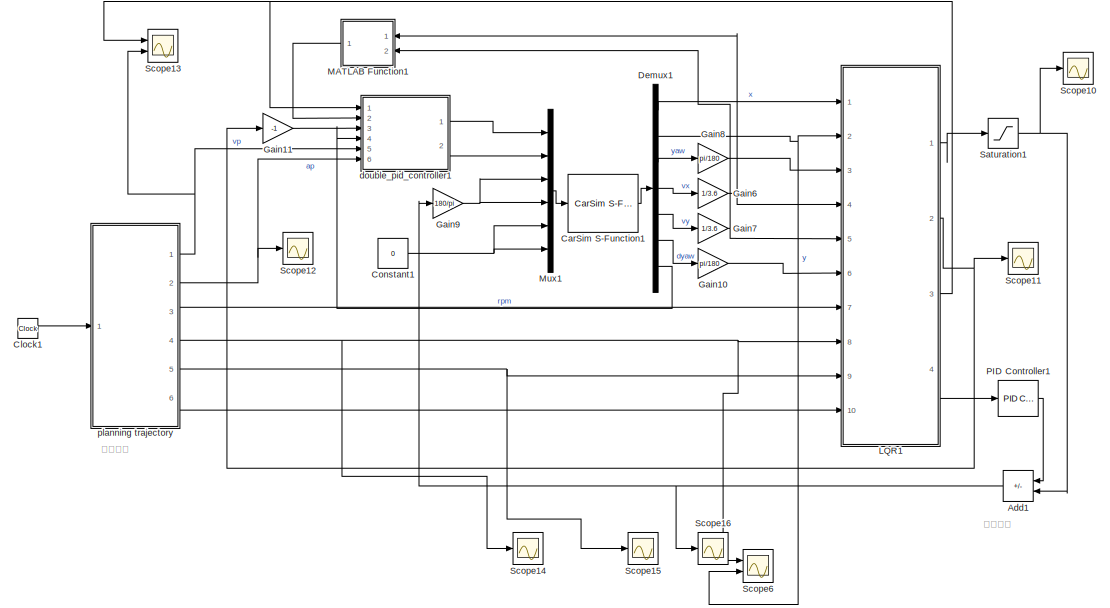
[diagram: root canvas - part 1/2, middle left region]
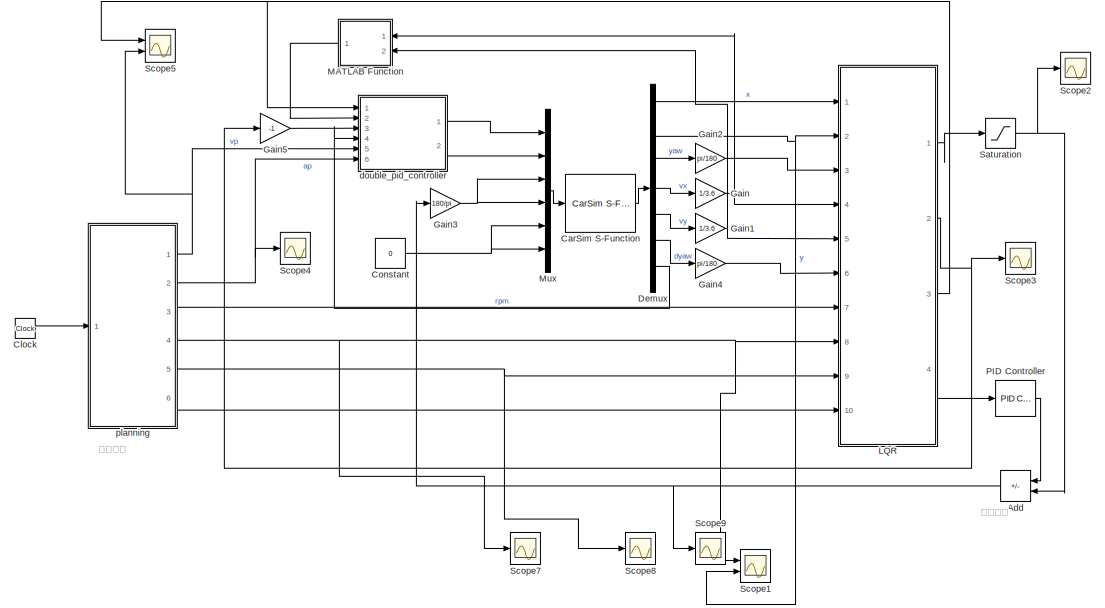
[diagram: root canvas - part 2/2, bottom right region]
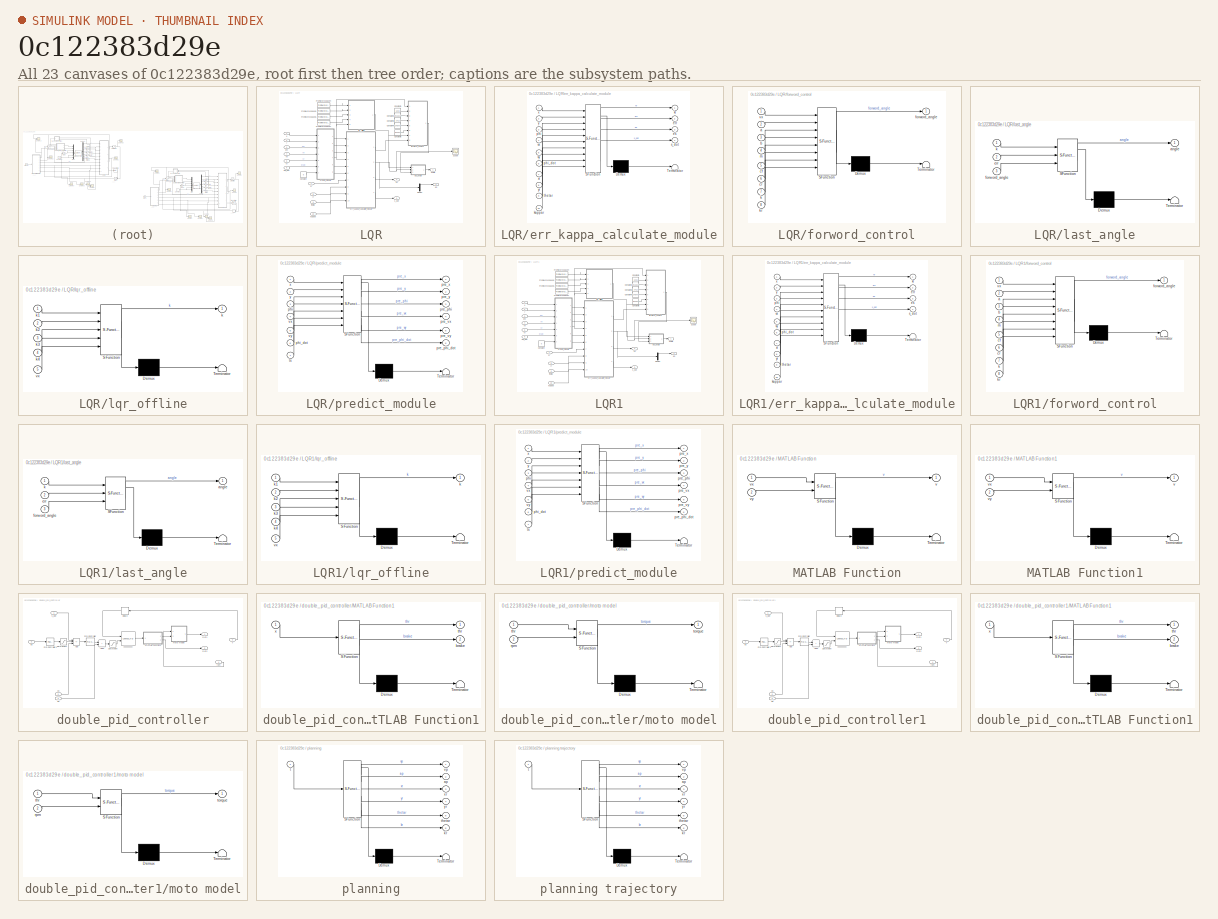
[diagram: thumbnail index - all 23 canvases of the model, root first then tree order]
MODEL slx_0c122383d29e
KIND model
CONFIG AbsTol = auto
CONFIG EnableMultiTasking = off
CONFIG FixedStep = auto
CONFIG MaxStep = auto
CONFIG MinStep = auto
CONFIG RelTol = 1e-3
CONFIG SampleTimeConstraint = Unconstrained
CONFIG Solver = VariableStepAuto
CONFIG SolverName = VariableStepAuto
CONFIG StartTime = 0.0
CONFIG StopTime = 40
BLOCK [Sum] Add
  Commented = on
  IconShape = rectangular
  Inputs = -+
  NameLocation = top
  Ports = [2, 1]
BLOCK [Sum] Add1
  IconShape = rectangular
  Inputs = -+
  NameLocation = top
  Ports = [2, 1]
BLOCK [Reference] CarSim S-Function  REF=Solver_SF/CarSim S-Function
  Commented = on
  Ports = [1, 1]
  Priority = 1
  SourceBlock = Solver_SF/CarSim S-Function
  SourceProductName = CarSim S-Function
  SourceType = Vehicle math model library
BLOCK [Reference] CarSim S-Function1  REF=Solver_SF/CarSim S-Function
  Ports = [1, 1]
  Priority = 1
  SourceBlock = Solver_SF/CarSim S-Function
  SourceProductName = CarSim S-Function
  SourceType = Vehicle math model library
BLOCK [Clock] Clock
  Commented = on
BLOCK [Clock] Clock1
BLOCK [Constant] Constant
  Commented = on
  Value = 0
BLOCK [Constant] Constant1
  Value = 0
BLOCK [Demux] Demux
  Commented = on
  Outputs = 7
  Ports = [1, 7]
BLOCK [Demux] Demux1
  Outputs = 7
  Ports = [1, 7]
BLOCK [Gain] Gain
  Commented = on
  Gain = 1/3.6
BLOCK [Gain] Gain1
  Commented = on
  Gain = 1/3.6
BLOCK [Gain] Gain10
  Gain = pi/180
BLOCK [Gain] Gain11
  Gain = -1
BLOCK [Gain] Gain2
  Commented = on
  Gain = pi/180
BLOCK [Gain] Gain3
  Commented = on
  Gain = 180/pi
BLOCK [Gain] Gain4
  Commented = on
  Gain = pi/180
BLOCK [Gain] Gain5
  Commented = on
  Gain = -1
BLOCK [Gain] Gain6
  Gain = 1/3.6
BLOCK [Gain] Gain7
  Gain = 1/3.6
BLOCK [Gain] Gain8
  Gain = pi/180
BLOCK [Gain] Gain9
  Gain = 180/pi
BLOCK [SubSystem] LQR
  Commented = on
  Ports = [10, 4]
  RequestExecContextInheritance = off
BLOCK [Constant] LQR/Constant
  Value = 0
BLOCK [Constant] LQR/Constant1
  Value = 1.015
BLOCK [Constant] LQR/Constant2
  Value = 2.91-1.015
BLOCK [Constant] LQR/Constant3
  Value = 1412
BLOCK [Constant] LQR/Constant4
  Value = -148970
BLOCK [Constant] LQR/Constant5
  Value = -82204
BLOCK [Demux] LQR/Demux
  Ports = [1, 4]
BLOCK [FromWorkspace] LQR/From Workspace4
  VariableName = k1
BLOCK [FromWorkspace] LQR/From Workspace5
  VariableName = k2
BLOCK [FromWorkspace] LQR/From Workspace6
  VariableName = k3
BLOCK [FromWorkspace] LQR/From Workspace7
  VariableName = k4
BLOCK [Scope] LQR/Scope
  Floating = off
  NumInputPorts = 1
  Ports = [1]
  ScopeSpecificationString = Simulink.scopes.TimeScopeBlockCfg('CurrentConfiguration', extmgr.ConfigurationSet(extmgr.Configuration('Core','General UI',true),extmgr.Configuration('Core','Source UI',true),extmgr.Configuration('Sources','WiredSimulink',true,'DataLoggingVariableName','ScopeData9'),extmgr.Configuration('Visuals','Time Domain',true,'SerializedDisplays',{struct('MinYLimReal','-0.03974','MaxYLimReal','0.03656','YLab...<+1496ch>
BLOCK [Outport] LQR/angle
  VectorParamsAs1DForOutWhenUnconnected = off
BLOCK [Outport] LQR/ed
  Port = 4
  VectorParamsAs1DForOutWhenUnconnected = off
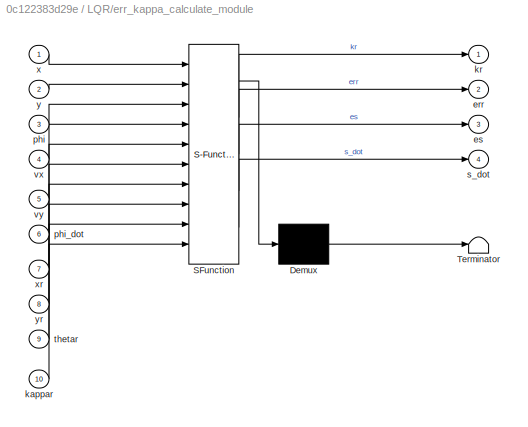
BLOCK [SubSystem] LQR/err_kappa_calculate_module
  ErrorFcn = Stateflow.Translate.translate
  PermitHierarchicalResolution = ExplicitOnly
  Ports = [10, 4]
  RequestExecContextInheritance = off
  SFBlockType = MATLAB Function
  TreatAsAtomicUnit = on
BLOCK [Demux] LQR/err_kappa_calculate_module/ Demux 
  Outputs = 1
  Ports = [1, 1]
BLOCK [S-Function] LQR/err_kappa_calculate_module/ SFunction 
  EnableBusSupport = on
  FunctionName = sf_sfun
  PortCounts = [10 5]
  Ports = [10, 5]
  SFcnIsStateOwnerBlock = off
  SFunctionDeploymentMode = off
  Tag = Stateflow S-Function 5
BLOCK [Terminator] LQR/err_kappa_calculate_module/ Terminator 
BLOCK [Outport] LQR/err_kappa_calculate_module/err
  Port = 2
  VectorParamsAs1DForOutWhenUnconnected = off
BLOCK [Outport] LQR/err_kappa_calculate_module/es
  Port = 3
  VectorParamsAs1DForOutWhenUnconnected = off
BLOCK [Inport] LQR/err_kappa_calculate_module/kappar
  Port = 10
BLOCK [Outport] LQR/err_kappa_calculate_module/kr
  VectorParamsAs1DForOutWhenUnconnected = off
BLOCK [Inport] LQR/err_kappa_calculate_module/phi
  Port = 3
BLOCK [Inport] LQR/err_kappa_calculate_module/phi_dot
  Port = 6
BLOCK [Outport] LQR/err_kappa_calculate_module/s_dot
  Port = 4
  VectorParamsAs1DForOutWhenUnconnected = off
BLOCK [Inport] LQR/err_kappa_calculate_module/thetar
  Port = 9
BLOCK [Inport] LQR/err_kappa_calculate_module/vx
  Port = 4
BLOCK [Inport] LQR/err_kappa_calculate_module/vy
  Port = 5
BLOCK [Inport] LQR/err_kappa_calculate_module/x
BLOCK [Inport] LQR/err_kappa_calculate_module/xr
  Port = 7
BLOCK [Inport] LQR/err_kappa_calculate_module/y
  Port = 2
BLOCK [Inport] LQR/err_kappa_calculate_module/yr
  Port = 8
BLOCK [Outport] LQR/es
  Port = 2
  VectorParamsAs1DForOutWhenUnconnected = off
BLOCK [SubSystem] LQR/forword_control
  ErrorFcn = Stateflow.Translate.translate
  PermitHierarchicalResolution = ExplicitOnly
  Ports = [8, 1]
  RequestExecContextInheritance = off
  SFBlockType = MATLAB Function
  TreatAsAtomicUnit = on
BLOCK [Demux] LQR/forword_control/ Demux 
  Outputs = 1
  Ports = [1, 1]
BLOCK [S-Function] LQR/forword_control/ SFunction 
  EnableBusSupport = on
  FunctionName = sf_sfun
  PortCounts = [8 2]
  Ports = [8, 2]
  SFcnIsStateOwnerBlock = off
  SFunctionDeploymentMode = off
  Tag = Stateflow S-Function 6
BLOCK [Terminator] LQR/forword_control/ Terminator 
BLOCK [Inport] LQR/forword_control/a
  Port = 2
BLOCK [Inport] LQR/forword_control/b
  Port = 3
BLOCK [Inport] LQR/forword_control/cf
  Port = 5
BLOCK [Inport] LQR/forword_control/cr
  Port = 6
BLOCK [Outport] LQR/forword_control/forword_angle
  VectorParamsAs1DForOutWhenUnconnected = off
BLOCK [Inport] LQR/forword_control/k
  Port = 7
BLOCK [Inport] LQR/forword_control/kr
  Port = 8
BLOCK [Inport] LQR/forword_control/m
  Port = 4
BLOCK [Inport] LQR/forword_control/vx
BLOCK [Inport] LQR/kappar
  Port = 10
BLOCK [SubSystem] LQR/last_angle
  ErrorFcn = Stateflow.Translate.translate
  PermitHierarchicalResolution = ExplicitOnly
  Ports = [3, 1]
  RequestExecContextInheritance = off
  SFBlockType = MATLAB Function
  TreatAsAtomicUnit = on
BLOCK [Demux] LQR/last_angle/ Demux 
  Outputs = 1
  Ports = [1, 1]
BLOCK [S-Function] LQR/last_angle/ SFunction 
  EnableBusSupport = on
  FunctionName = sf_sfun
  PortCounts = [3 2]
  Ports = [3, 2]
  SFcnIsStateOwnerBlock = off
  SFunctionDeploymentMode = off
  Tag = Stateflow S-Function 7
BLOCK [Terminator] LQR/last_angle/ Terminator 
BLOCK [Outport] LQR/last_angle/angle
  VectorParamsAs1DForOutWhenUnconnected = off
BLOCK [Inport] LQR/last_angle/err
  Port = 2
BLOCK [Inport] LQR/last_angle/forword_angle
  Port = 3
BLOCK [Inport] LQR/last_angle/k
BLOCK [SubSystem] LQR/lqr_offline
  ErrorFcn = Stateflow.Translate.translate
  PermitHierarchicalResolution = ExplicitOnly
  Ports = [5, 1]
  RequestExecContextInheritance = off
  SFBlockType = MATLAB Function
  TreatAsAtomicUnit = on
BLOCK [Demux] LQR/lqr_offline/ Demux 
  Outputs = 1
  Ports = [1, 1]
BLOCK [S-Function] LQR/lqr_offline/ SFunction 
  EnableBusSupport = on
  FunctionName = sf_sfun
  PortCounts = [5 2]
  Ports = [5, 2]
  SFcnIsStateOwnerBlock = off
  SFunctionDeploymentMode = off
  Tag = Stateflow S-Function 8
BLOCK [Terminator] LQR/lqr_offline/ Terminator 
BLOCK [Outport] LQR/lqr_offline/k
  VectorParamsAs1DForOutWhenUnconnected = off
BLOCK [Inport] LQR/lqr_offline/k1
BLOCK [Inport] LQR/lqr_offline/k2
  Port = 2
BLOCK [Inport] LQR/lqr_offline/k3
  Port = 3
BLOCK [Inport] LQR/lqr_offline/k4
  Port = 4
BLOCK [Inport] LQR/lqr_offline/vx
  Port = 5
BLOCK [Inport] LQR/phi
  Port = 3
BLOCK [Inport] LQR/phi_dot
  Port = 6
BLOCK [SubSystem] LQR/predict_module
  ErrorFcn = Stateflow.Translate.translate
  PermitHierarchicalResolution = ExplicitOnly
  Ports = [7, 6]
  RequestExecContextInheritance = off
  SFBlockType = MATLAB Function
  TreatAsAtomicUnit = on
BLOCK [Demux] LQR/predict_module/ Demux 
  Outputs = 1
  Ports = [1, 1]
BLOCK [S-Function] LQR/predict_module/ SFunction 
  EnableBusSupport = on
  FunctionName = sf_sfun
  PortCounts = [7 7]
  Ports = [7, 7]
  SFcnIsStateOwnerBlock = off
  SFunctionDeploymentMode = off
  Tag = Stateflow S-Function 9
BLOCK [Terminator] LQR/predict_module/ Terminator 
BLOCK [Inport] LQR/predict_module/phi
  Port = 3
BLOCK [Inport] LQR/predict_module/phi_dot
  Port = 6
BLOCK [Outport] LQR/predict_module/pre_phi
  Port = 3
  VectorParamsAs1DForOutWhenUnconnected = off
BLOCK [Outport] LQR/predict_module/pre_phi_dot
  Port = 6
  VectorParamsAs1DForOutWhenUnconnected = off
BLOCK [Outport] LQR/predict_module/pre_vx
  Port = 4
  VectorParamsAs1DForOutWhenUnconnected = off
BLOCK [Outport] LQR/predict_module/pre_vy
  Port = 5
  VectorParamsAs1DForOutWhenUnconnected = off
BLOCK [Outport] LQR/predict_module/pre_x
  VectorParamsAs1DForOutWhenUnconnected = off
BLOCK [Outport] LQR/predict_module/pre_y
  Port = 2
  VectorParamsAs1DForOutWhenUnconnected = off
BLOCK [Inport] LQR/predict_module/ts
  Port = 7
BLOCK [Inport] LQR/predict_module/vx
  Port = 4
BLOCK [Inport] LQR/predict_module/vy
  Port = 5
BLOCK [Inport] LQR/predict_module/x
BLOCK [Inport] LQR/predict_module/y
  Port = 2
BLOCK [Outport] LQR/s_dot
  Port = 3
  VectorParamsAs1DForOutWhenUnconnected = off
BLOCK [Inport] LQR/thetar
  Port = 9
BLOCK [Inport] LQR/vx
  Port = 4
BLOCK [Inport] LQR/vy
  Port = 5
BLOCK [Inport] LQR/x
BLOCK [Inport] LQR/xr
  Port = 7
BLOCK [Inport] LQR/y
  Port = 2
BLOCK [Inport] LQR/yr
  Port = 8
BLOCK [SubSystem] LQR1
  Ports = [10, 4]
  RequestExecContextInheritance = off
BLOCK [Constant] LQR1/Constant
  Value = 0
BLOCK [Constant] LQR1/Constant1
  Value = 1.015
BLOCK [Constant] LQR1/Constant2
  Value = 2.91-1.015
BLOCK [Constant] LQR1/Constant3
  Value = 1412
BLOCK [Constant] LQR1/Constant4
  Value = -148970
BLOCK [Constant] LQR1/Constant5
  Value = -82204
BLOCK [Demux] LQR1/Demux
  Ports = [1, 4]
BLOCK [FromWorkspace] LQR1/From Workspace4
  VariableName = k1
BLOCK [FromWorkspace] LQR1/From Workspace5
  VariableName = k2
BLOCK [FromWorkspace] LQR1/From Workspace6
  VariableName = k3
BLOCK [FromWorkspace] LQR1/From Workspace7
  VariableName = k4
BLOCK [Scope] LQR1/Scope
  Floating = off
  NumInputPorts = 1
  Ports = [1]
  ScopeSpecificationString = Simulink.scopes.TimeScopeBlockCfg('CurrentConfiguration', extmgr.ConfigurationSet(extmgr.Configuration('Core','General UI',true),extmgr.Configuration('Core','Source UI',true),extmgr.Configuration('Sources','WiredSimulink',true,'DataLoggingVariableName','ScopeData9'),extmgr.Configuration('Visuals','Time Domain',true,'SerializedDisplays',{struct('MinYLimReal','-0.03982','MaxYLimReal','0.0414','YLabe...<+1492ch>
BLOCK [Outport] LQR1/angle
  VectorParamsAs1DForOutWhenUnconnected = off
BLOCK [Outport] LQR1/ed
  Port = 4
  VectorParamsAs1DForOutWhenUnconnected = off
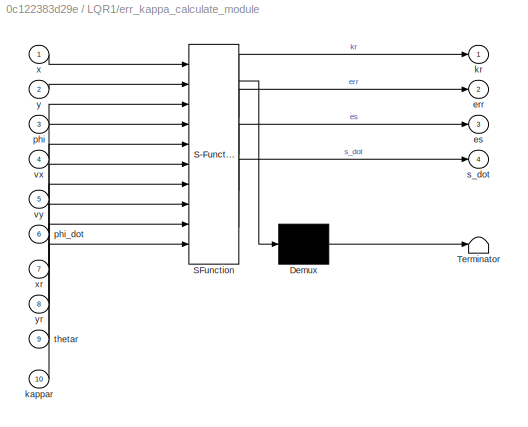
BLOCK [SubSystem] LQR1/err_kappa_calculate_module
  ErrorFcn = Stateflow.Translate.translate
  PermitHierarchicalResolution = ExplicitOnly
  Ports = [10, 4]
  RequestExecContextInheritance = off
  SFBlockType = MATLAB Function
  TreatAsAtomicUnit = on
BLOCK [Demux] LQR1/err_kappa_calculate_module/ Demux 
  Outputs = 1
  Ports = [1, 1]
BLOCK [S-Function] LQR1/err_kappa_calculate_module/ SFunction 
  EnableBusSupport = on
  FunctionName = sf_sfun
  PortCounts = [10 5]
  Ports = [10, 5]
  SFcnIsStateOwnerBlock = off
  SFunctionDeploymentMode = off
  Tag = Stateflow S-Function 10
BLOCK [Terminator] LQR1/err_kappa_calculate_module/ Terminator 
BLOCK [Outport] LQR1/err_kappa_calculate_module/err
  Port = 2
  VectorParamsAs1DForOutWhenUnconnected = off
BLOCK [Outport] LQR1/err_kappa_calculate_module/es
  Port = 3
  VectorParamsAs1DForOutWhenUnconnected = off
BLOCK [Inport] LQR1/err_kappa_calculate_module/kappar
  Port = 10
BLOCK [Outport] LQR1/err_kappa_calculate_module/kr
  VectorParamsAs1DForOutWhenUnconnected = off
BLOCK [Inport] LQR1/err_kappa_calculate_module/phi
  Port = 3
BLOCK [Inport] LQR1/err_kappa_calculate_module/phi_dot
  Port = 6
BLOCK [Outport] LQR1/err_kappa_calculate_module/s_dot
  Port = 4
  VectorParamsAs1DForOutWhenUnconnected = off
BLOCK [Inport] LQR1/err_kappa_calculate_module/thetar
  Port = 9
BLOCK [Inport] LQR1/err_kappa_calculate_module/vx
  Port = 4
BLOCK [Inport] LQR1/err_kappa_calculate_module/vy
  Port = 5
BLOCK [Inport] LQR1/err_kappa_calculate_module/x
BLOCK [Inport] LQR1/err_kappa_calculate_module/xr
  Port = 7
BLOCK [Inport] LQR1/err_kappa_calculate_module/y
  Port = 2
BLOCK [Inport] LQR1/err_kappa_calculate_module/yr
  Port = 8
BLOCK [Outport] LQR1/es
  Port = 2
  VectorParamsAs1DForOutWhenUnconnected = off
BLOCK [SubSystem] LQR1/forword_control
  ErrorFcn = Stateflow.Translate.translate
  PermitHierarchicalResolution = ExplicitOnly
  Ports = [8, 1]
  RequestExecContextInheritance = off
  SFBlockType = MATLAB Function
  TreatAsAtomicUnit = on
BLOCK [Demux] LQR1/forword_control/ Demux 
  Outputs = 1
  Ports = [1, 1]
BLOCK [S-Function] LQR1/forword_control/ SFunction 
  EnableBusSupport = on
  FunctionName = sf_sfun
  PortCounts = [8 2]
  Ports = [8, 2]
  SFcnIsStateOwnerBlock = off
  SFunctionDeploymentMode = off
  Tag = Stateflow S-Function 11
BLOCK [Terminator] LQR1/forword_control/ Terminator 
BLOCK [Inport] LQR1/forword_control/a
  Port = 2
BLOCK [Inport] LQR1/forword_control/b
  Port = 3
BLOCK [Inport] LQR1/forword_control/cf
  Port = 5
BLOCK [Inport] LQR1/forword_control/cr
  Port = 6
BLOCK [Outport] LQR1/forword_control/forword_angle
  VectorParamsAs1DForOutWhenUnconnected = off
BLOCK [Inport] LQR1/forword_control/k
  Port = 7
BLOCK [Inport] LQR1/forword_control/kr
  Port = 8
BLOCK [Inport] LQR1/forword_control/m
  Port = 4
BLOCK [Inport] LQR1/forword_control/vx
BLOCK [Inport] LQR1/kappar
  Port = 10
BLOCK [SubSystem] LQR1/last_angle
  ErrorFcn = Stateflow.Translate.translate
  PermitHierarchicalResolution = ExplicitOnly
  Ports = [3, 1]
  RequestExecContextInheritance = off
  SFBlockType = MATLAB Function
  TreatAsAtomicUnit = on
BLOCK [Demux] LQR1/last_angle/ Demux 
  Outputs = 1
  Ports = [1, 1]
BLOCK [S-Function] LQR1/last_angle/ SFunction 
  EnableBusSupport = on
  FunctionName = sf_sfun
  PortCounts = [3 2]
  Ports = [3, 2]
  SFcnIsStateOwnerBlock = off
  SFunctionDeploymentMode = off
  Tag = Stateflow S-Function 12
BLOCK [Terminator] LQR1/last_angle/ Terminator 
BLOCK [Outport] LQR1/last_angle/angle
  VectorParamsAs1DForOutWhenUnconnected = off
BLOCK [Inport] LQR1/last_angle/err
  Port = 2
BLOCK [Inport] LQR1/last_angle/forword_angle
  Port = 3
BLOCK [Inport] LQR1/last_angle/k
BLOCK [SubSystem] LQR1/lqr_offline
  ErrorFcn = Stateflow.Translate.translate
  PermitHierarchicalResolution = ExplicitOnly
  Ports = [5, 1]
  RequestExecContextInheritance = off
  SFBlockType = MATLAB Function
  TreatAsAtomicUnit = on
BLOCK [Demux] LQR1/lqr_offline/ Demux 
  Outputs = 1
  Ports = [1, 1]
BLOCK [S-Function] LQR1/lqr_offline/ SFunction 
  EnableBusSupport = on
  FunctionName = sf_sfun
  PortCounts = [5 2]
  Ports = [5, 2]
  SFcnIsStateOwnerBlock = off
  SFunctionDeploymentMode = off
  Tag = Stateflow S-Function 13
BLOCK [Terminator] LQR1/lqr_offline/ Terminator 
BLOCK [Outport] LQR1/lqr_offline/k
  VectorParamsAs1DForOutWhenUnconnected = off
BLOCK [Inport] LQR1/lqr_offline/k1
BLOCK [Inport] LQR1/lqr_offline/k2
  Port = 2
BLOCK [Inport] LQR1/lqr_offline/k3
  Port = 3
BLOCK [Inport] LQR1/lqr_offline/k4
  Port = 4
BLOCK [Inport] LQR1/lqr_offline/vx
  Port = 5
BLOCK [Inport] LQR1/phi
  Port = 3
BLOCK [Inport] LQR1/phi_dot
  Port = 6
BLOCK [SubSystem] LQR1/predict_module
  ErrorFcn = Stateflow.Translate.translate
  PermitHierarchicalResolution = ExplicitOnly
  Ports = [7, 6]
  RequestExecContextInheritance = off
  SFBlockType = MATLAB Function
  TreatAsAtomicUnit = on
BLOCK [Demux] LQR1/predict_module/ Demux 
  Outputs = 1
  Ports = [1, 1]
BLOCK [S-Function] LQR1/predict_module/ SFunction 
  EnableBusSupport = on
  FunctionName = sf_sfun
  PortCounts = [7 7]
  Ports = [7, 7]
  SFcnIsStateOwnerBlock = off
  SFunctionDeploymentMode = off
  Tag = Stateflow S-Function 14
BLOCK [Terminator] LQR1/predict_module/ Terminator 
BLOCK [Inport] LQR1/predict_module/phi
  Port = 3
BLOCK [Inport] LQR1/predict_module/phi_dot
  Port = 6
BLOCK [Outport] LQR1/predict_module/pre_phi
  Port = 3
  VectorParamsAs1DForOutWhenUnconnected = off
BLOCK [Outport] LQR1/predict_module/pre_phi_dot
  Port = 6
  VectorParamsAs1DForOutWhenUnconnected = off
BLOCK [Outport] LQR1/predict_module/pre_vx
  Port = 4
  VectorParamsAs1DForOutWhenUnconnected = off
BLOCK [Outport] LQR1/predict_module/pre_vy
  Port = 5
  VectorParamsAs1DForOutWhenUnconnected = off
BLOCK [Outport] LQR1/predict_module/pre_x
  VectorParamsAs1DForOutWhenUnconnected = off
BLOCK [Outport] LQR1/predict_module/pre_y
  Port = 2
  VectorParamsAs1DForOutWhenUnconnected = off
BLOCK [Inport] LQR1/predict_module/ts
  Port = 7
BLOCK [Inport] LQR1/predict_module/vx
  Port = 4
BLOCK [Inport] LQR1/predict_module/vy
  Port = 5
BLOCK [Inport] LQR1/predict_module/x
BLOCK [Inport] LQR1/predict_module/y
  Port = 2
BLOCK [Outport] LQR1/s_dot
  Port = 3
  VectorParamsAs1DForOutWhenUnconnected = off
BLOCK [Inport] LQR1/thetar
  Port = 9
BLOCK [Inport] LQR1/vx
  Port = 4
BLOCK [Inport] LQR1/vy
  Port = 5
BLOCK [Inport] LQR1/x
BLOCK [Inport] LQR1/xr
  Port = 7
BLOCK [Inport] LQR1/y
  Port = 2
BLOCK [Inport] LQR1/yr
  Port = 8
BLOCK [SubSystem] MATLAB Function
  Commented = on
  ErrorFcn = Stateflow.Translate.translate
  NameLocation = top
  PermitHierarchicalResolution = ExplicitOnly
  Ports = [2, 1]
  RequestExecContextInheritance = off
  SFBlockType = MATLAB Function
  TreatAsAtomicUnit = on
BLOCK [Demux] MATLAB Function/ Demux 
  Outputs = 1
  Ports = [1, 1]
BLOCK [S-Function] MATLAB Function/ SFunction 
  EnableBusSupport = on
  FunctionName = sf_sfun
  PortCounts = [2 2]
  Ports = [2, 2]
  SFcnIsStateOwnerBlock = off
  SFunctionDeploymentMode = off
  Tag = Stateflow S-Function 4
BLOCK [Terminator] MATLAB Function/ Terminator 
BLOCK [Outport] MATLAB Function/v
  VectorParamsAs1DForOutWhenUnconnected = off
BLOCK [Inport] MATLAB Function/vx
BLOCK [Inport] MATLAB Function/vy
  Port = 2
BLOCK [SubSystem] MATLAB Function1
  ErrorFcn = Stateflow.Translate.translate
  NameLocation = top
  PermitHierarchicalResolution = ExplicitOnly
  Ports = [2, 1]
  RequestExecContextInheritance = off
  SFBlockType = MATLAB Function
  TreatAsAtomicUnit = on
BLOCK [Demux] MATLAB Function1/ Demux 
  Outputs = 1
  Ports = [1, 1]
BLOCK [S-Function] MATLAB Function1/ SFunction 
  EnableBusSupport = on
  FunctionName = sf_sfun
  PortCounts = [2 2]
  Ports = [2, 2]
  SFcnIsStateOwnerBlock = off
  SFunctionDeploymentMode = off
  Tag = Stateflow S-Function 15
BLOCK [Terminator] MATLAB Function1/ Terminator 
BLOCK [Outport] MATLAB Function1/v
  VectorParamsAs1DForOutWhenUnconnected = off
BLOCK [Inport] MATLAB Function1/vx
BLOCK [Inport] MATLAB Function1/vy
  Port = 2
BLOCK [Mux] Mux
  Commented = on
  DisplayOption = bar
  Inputs = 6
  Ports = [6, 1]
BLOCK [Mux] Mux1
  DisplayOption = bar
  Inputs = 6
  Ports = [6, 1]
BLOCK [Reference] PID Controller  REF=simulink/Continuous/PID Controller
  Commented = on
  Ports = [1, 1]
  SourceBlock = simulink/Continuous/PID Controller
  SourceProductBaseCode = SL
  SourceType = PID 1dof
BLOCK [Reference] PID Controller1  REF=simulink/Continuous/PID Controller
  Ports = [1, 1]
  SourceBlock = simulink/Continuous/PID Controller
  SourceProductBaseCode = SL
  SourceType = PID 1dof
BLOCK [Saturate] Saturation
  Commented = on
  LowerLimit = -1
  UpperLimit = 1
BLOCK [Saturate] Saturation1
  LowerLimit = -1
  UpperLimit = 1
BLOCK [Scope] Scope1
  Commented = on
  Floating = off
  NumInputPorts = 2
  Ports = [2]
  ScopeSpecificationString = Simulink.scopes.TimeScopeBlockCfg('CurrentConfiguration', extmgr.ConfigurationSet(extmgr.Configuration('Core','General UI',true),extmgr.Configuration('Core','Source UI',true),extmgr.Configuration('Sources','WiredSimulink',true,'DataLoggingVariableName','ScopeData1'),extmgr.Configuration('Visuals','Time Domain',true,'SerializedDisplays',{struct('MinYLimReal','8.89611','MaxYLimReal','8.91635','YLabe...<+1391ch>
BLOCK [Scope] Scope10
  Floating = off
  NumInputPorts = 1
  Ports = [1]
  ScopeSpecificationString = Simulink.scopes.TimeScopeBlockCfg('CurrentConfiguration', extmgr.ConfigurationSet(extmgr.Configuration('Core','General UI',true),extmgr.Configuration('Core','Source UI',true),extmgr.Configuration('Sources','WiredSimulink',true,'DataLoggingVariableName','ScopeData9'),extmgr.Configuration('Visuals','Time Domain',true,'SerializedDisplays',{struct('MinYLimReal','-0.02024','MaxYLimReal','0.02053','YLab...<+1395ch>
BLOCK [Scope] Scope11
  Floating = off
  NumInputPorts = 1
  Ports = [1]
  ScopeSpecificationString = Simulink.scopes.TimeScopeBlockCfg('CurrentConfiguration', extmgr.ConfigurationSet(extmgr.Configuration('Core','General UI',true),extmgr.Configuration('Core','Source UI',true),extmgr.Configuration('Sources','WiredSimulink',true,'DataLoggingVariableName','ScopeData10'),extmgr.Configuration('Visuals','Time Domain',true,'SerializedDisplays',{struct('MinYLimReal','-0.05359','MaxYLimReal','0.08265','YLa...<+1392ch>
BLOCK [Scope] Scope12
  Floating = off
  NumInputPorts = 1
  Ports = [1]
  ScopeSpecificationString = Simulink.scopes.TimeScopeBlockCfg('CurrentConfiguration', extmgr.ConfigurationSet(extmgr.Configuration('Core','General UI',true),extmgr.Configuration('Core','Source UI',true),extmgr.Configuration('Sources','WiredSimulink',true,'DataLoggingVariableName','ScopeData11'),extmgr.Configuration('Visuals','Time Domain',true,'SerializedDisplays',{struct('MinYLimReal','-0.80295','MaxYLimReal','0.80295','YLa...<+1410ch>
BLOCK [Scope] Scope13
  Floating = off
  NumInputPorts = 2
  Ports = [2]
  ScopeSpecificationString = Simulink.scopes.TimeScopeBlockCfg('CurrentConfiguration', extmgr.ConfigurationSet(extmgr.Configuration('Core','General UI',true),extmgr.Configuration('Core','Source UI',true),extmgr.Configuration('Sources','WiredSimulink',true,'DataLoggingVariableName','ScopeData12'),extmgr.Configuration('Visuals','Time Domain',true,'SerializedDisplays',{struct('MinYLimReal','-0.50932','MaxYLimReal','4.5839','YLab...<+1415ch>
BLOCK [Scope] Scope14
  Floating = off
  NumInputPorts = 1
  Ports = [1]
  ScopeSpecificationString = Simulink.scopes.TimeScopeBlockCfg('CurrentConfiguration', extmgr.ConfigurationSet(extmgr.Configuration('Core','General UI',true),extmgr.Configuration('Core','Source UI',true),extmgr.Configuration('Sources','WiredSimulink',true,'DataLoggingVariableName','ScopeData13'),extmgr.Configuration('Visuals','Time Domain',true,'SerializedDisplays',{struct('MinYLimReal','-0.00012','MaxYLimReal','0.00104','YLa...<+1382ch>
BLOCK [Scope] Scope15
  Floating = off
  NumInputPorts = 1
  Ports = [1]
  ScopeSpecificationString = Simulink.scopes.TimeScopeBlockCfg('CurrentConfiguration', extmgr.ConfigurationSet(extmgr.Configuration('Core','General UI',true),extmgr.Configuration('Core','Source UI',true),extmgr.Configuration('Sources','WiredSimulink',true,'DataLoggingVariableName','ScopeData14'),extmgr.Configuration('Visuals','Time Domain',true,'SerializedDisplays',{struct('MinYLimReal','-0.02317','MaxYLimReal','0.20852','YLa...<+1375ch>
BLOCK [Scope] Scope16
  Floating = off
  NumInputPorts = 1
  Ports = [1]
  ScopeSpecificationString = Simulink.scopes.TimeScopeBlockCfg('CurrentConfiguration', extmgr.ConfigurationSet(extmgr.Configuration('Core','General UI',true),extmgr.Configuration('Core','Source UI',true),extmgr.Configuration('Sources','WiredSimulink',true,'DataLoggingVariableName','ScopeData15'),extmgr.Configuration('Visuals','Time Domain',true,'SerializedDisplays',{struct('MinYLimReal','-0.0206','MaxYLimReal','0.02074','YLab...<+1361ch>
BLOCK [Scope] Scope2
  Commented = on
  Floating = off
  NumInputPorts = 1
  Ports = [1]
  ScopeSpecificationString = Simulink.scopes.TimeScopeBlockCfg('CurrentConfiguration', extmgr.ConfigurationSet(extmgr.Configuration('Core','General UI',true),extmgr.Configuration('Core','Source UI',true),extmgr.Configuration('Sources','WiredSimulink',true,'DataLoggingVariableName','ScopeData2'),extmgr.Configuration('Visuals','Time Domain',true,'SerializedDisplays',{struct('MinYLimReal','-0.0206','MaxYLimReal','0.02074','YLabe...<+1367ch>
BLOCK [Scope] Scope3
  Commented = on
  Floating = off
  NumInputPorts = 1
  Ports = [1]
  ScopeSpecificationString = Simulink.scopes.TimeScopeBlockCfg('CurrentConfiguration', extmgr.ConfigurationSet(extmgr.Configuration('Core','General UI',true),extmgr.Configuration('Core','Source UI',true),extmgr.Configuration('Sources','WiredSimulink',true,'DataLoggingVariableName','ScopeData3'),extmgr.Configuration('Visuals','Time Domain',true,'SerializedDisplays',{struct('MinYLimReal','-0.06052','MaxYLimReal','0.08317','YLab...<+1365ch>
BLOCK [Scope] Scope4
  Commented = on
  Floating = off
  NumInputPorts = 1
  Ports = [1]
  ScopeSpecificationString = Simulink.scopes.TimeScopeBlockCfg('CurrentConfiguration', extmgr.ConfigurationSet(extmgr.Configuration('Core','General UI',true),extmgr.Configuration('Core','Source UI',true),extmgr.Configuration('Sources','WiredSimulink',true,'DataLoggingVariableName','ScopeData4'),extmgr.Configuration('Visuals','Time Domain',true,'SerializedDisplays',{struct('MinYLimReal','-0.80295','MaxYLimReal','0.80295','YLab...<+1409ch>
BLOCK [Scope] Scope5
  Commented = on
  Floating = off
  NumInputPorts = 2
  Ports = [2]
  ScopeSpecificationString = Simulink.scopes.TimeScopeBlockCfg('CurrentConfiguration', extmgr.ConfigurationSet(extmgr.Configuration('Core','General UI',true),extmgr.Configuration('Core','Source UI',true),extmgr.Configuration('Sources','WiredSimulink',true,'DataLoggingVariableName','ScopeData5'),extmgr.Configuration('Visuals','Time Domain',true,'SerializedDisplays',{struct('MinYLimReal','-0.79486','MaxYLimReal','7.15378','YLab...<+1392ch>
BLOCK [Scope] Scope6
  Floating = off
  NumInputPorts = 2
  Ports = [2]
  ScopeSpecificationString = Simulink.scopes.TimeScopeBlockCfg('CurrentConfiguration', extmgr.ConfigurationSet(extmgr.Configuration('Core','General UI',true),extmgr.Configuration('Core','Source UI',true),extmgr.Configuration('Sources','WiredSimulink',true,'DataLoggingVariableName','ScopeData16'),extmgr.Configuration('Visuals','Time Domain',true,'SerializedDisplays',{struct('MinYLimReal','-1.22069','MaxYLimReal','10.98618','YL...<+1462ch>
BLOCK [Scope] Scope7
  Commented = on
  Floating = off
  NumInputPorts = 1
  Ports = [1]
  ScopeSpecificationString = Simulink.scopes.TimeScopeBlockCfg('CurrentConfiguration', extmgr.ConfigurationSet(extmgr.Configuration('Core','General UI',true),extmgr.Configuration('Core','Source UI',true),extmgr.Configuration('Sources','WiredSimulink',true,'DataLoggingVariableName','ScopeData6'),extmgr.Configuration('Visuals','Time Domain',true,'SerializedDisplays',{struct('MinYLimReal','-1.25','MaxYLimReal','11.25','YLabelRea...<+1356ch>
BLOCK [Scope] Scope8
  Commented = on
  Floating = off
  NumInputPorts = 1
  Ports = [1]
  ScopeSpecificationString = Simulink.scopes.TimeScopeBlockCfg('CurrentConfiguration', extmgr.ConfigurationSet(extmgr.Configuration('Core','General UI',true),extmgr.Configuration('Core','Source UI',true),extmgr.Configuration('Sources','WiredSimulink',true,'DataLoggingVariableName','ScopeData7'),extmgr.Configuration('Visuals','Time Domain',true,'SerializedDisplays',{struct('MinYLimReal','-0.02317','MaxYLimReal','0.20852','YLab...<+1374ch>
BLOCK [Scope] Scope9
  Commented = on
  Floating = off
  NumInputPorts = 1
  Ports = [1]
  ScopeSpecificationString = Simulink.scopes.TimeScopeBlockCfg('CurrentConfiguration', extmgr.ConfigurationSet(extmgr.Configuration('Core','General UI',true),extmgr.Configuration('Core','Source UI',true),extmgr.Configuration('Sources','WiredSimulink',true,'DataLoggingVariableName','ScopeData8'),extmgr.Configuration('Visuals','Time Domain',true,'SerializedDisplays',{struct('MinYLimReal','-0.0206','MaxYLimReal','0.02074','YLabe...<+1360ch>
BLOCK [SubSystem] double_pid_controller
  Commented = on
  Ports = [6, 2]
  RequestExecContextInheritance = off
BLOCK [Sum] double_pid_controller/Add
  IconShape = rectangular
  Inputs = -++
  Ports = [3, 1]
BLOCK [Sum] double_pid_controller/Add2
  IconShape = rectangular
  Ports = [2, 1]
BLOCK [Delay] double_pid_controller/Delay2
  DelayLength = 1
  InputPortMap = u0
  NameLocation = top
  Ports = [1, 1]
BLOCK [SubSystem] double_pid_controller/MATLAB Function1
  ErrorFcn = Stateflow.Translate.translate
  PermitHierarchicalResolution = ExplicitOnly
  Ports = [1, 2]
  RequestExecContextInheritance = off
  SFBlockType = MATLAB Function
  TreatAsAtomicUnit = on
BLOCK [Demux] double_pid_controller/MATLAB Function1/ Demux 
  Outputs = 1
  Ports = [1, 1]
BLOCK [S-Function] double_pid_controller/MATLAB Function1/ SFunction 
  EnableBusSupport = on
  FunctionName = sf_sfun
  PortCounts = [1 3]
  Ports = [1, 3]
  SFcnIsStateOwnerBlock = off
  SFunctionDeploymentMode = off
  Tag = Stateflow S-Function 1
BLOCK [Terminator] double_pid_controller/MATLAB Function1/ Terminator 
BLOCK [Outport] double_pid_controller/MATLAB Function1/brake
  Port = 2
  VectorParamsAs1DForOutWhenUnconnected = off
BLOCK [Outport] double_pid_controller/MATLAB Function1/thr
  VectorParamsAs1DForOutWhenUnconnected = off
BLOCK [Inport] double_pid_controller/MATLAB Function1/x
BLOCK [Outport] double_pid_controller/Out1
  VectorParamsAs1DForOutWhenUnconnected = off
BLOCK [Outport] double_pid_controller/Out2
  Port = 2
  VectorParamsAs1DForOutWhenUnconnected = off
BLOCK [Reference] double_pid_controller/PID Controller  REF=simulink/Continuous/PID Controller
  Ports = [1, 1]
  SourceBlock = simulink/Continuous/PID Controller
  SourceProductBaseCode = SL
  SourceType = PID 1dof
BLOCK [Reference] double_pid_controller/PID Controller1  REF=simulink/Continuous/PID Controller
  Ports = [1, 1]
  SourceBlock = simulink/Continuous/PID Controller
  SourceProductBaseCode = SL
  SourceType = PID 1dof
BLOCK [Saturate] double_pid_controller/Saturation
  LowerLimit = -8
  UpperLimit = 5
BLOCK [Saturate] double_pid_controller/Saturation1
  LowerLimit = -10
  UpperLimit = 10
BLOCK [Inport] double_pid_controller/ap
  Port = 6
BLOCK [Inport] double_pid_controller/es
  Port = 3
BLOCK [SubSystem] double_pid_controller/moto model
  ErrorFcn = Stateflow.Translate.translate
  PermitHierarchicalResolution = ExplicitOnly
  Ports = [2, 1]
  RequestExecContextInheritance = off
  SFBlockType = MATLAB Function
  TreatAsAtomicUnit = on
BLOCK [Demux] double_pid_controller/moto model/ Demux 
  Outputs = 1
  Ports = [1, 1]
BLOCK [S-Function] double_pid_controller/moto model/ SFunction 
  EnableBusSupport = on
  FunctionName = sf_sfun
  PortCounts = [2 2]
  Ports = [2, 2]
  SFcnIsStateOwnerBlock = off
  SFunctionDeploymentMode = off
  Tag = Stateflow S-Function 2
BLOCK [Terminator] double_pid_controller/moto model/ Terminator 
BLOCK [Inport] double_pid_controller/moto model/rpm
  Port = 2
BLOCK [Inport] double_pid_controller/moto model/thr
BLOCK [Outport] double_pid_controller/moto model/torque
  VectorParamsAs1DForOutWhenUnconnected = off
BLOCK [Inport] double_pid_controller/rpm
  Port = 4
BLOCK [Inport] double_pid_controller/s_dot
BLOCK [Inport] double_pid_controller/v
  Port = 2
BLOCK [Inport] double_pid_controller/vp
  Port = 5
BLOCK [Lookup_n-D] double_pid_controller/油门刹车合并标定表
  BreakpointsForDimension1 = vubr
  BreakpointsForDimension2 = aubr
  InternalRulePriority = Speed
  Ports = [2, 1]
  RndMeth = Simplest
  Table = tablebr
BLOCK [SubSystem] double_pid_controller1
  Ports = [6, 2]
  RequestExecContextInheritance = off
BLOCK [Sum] double_pid_controller1/Add
  IconShape = rectangular
  Inputs = -++
  Ports = [3, 1]
BLOCK [Sum] double_pid_controller1/Add2
  IconShape = rectangular
  Ports = [2, 1]
BLOCK [Delay] double_pid_controller1/Delay2
  DelayLength = 1
  InputPortMap = u0
  NameLocation = top
  Ports = [1, 1]
BLOCK [SubSystem] double_pid_controller1/MATLAB Function1
  ErrorFcn = Stateflow.Translate.translate
  PermitHierarchicalResolution = ExplicitOnly
  Ports = [1, 2]
  RequestExecContextInheritance = off
  SFBlockType = MATLAB Function
  TreatAsAtomicUnit = on
BLOCK [Demux] double_pid_controller1/MATLAB Function1/ Demux 
  Outputs = 1
  Ports = [1, 1]
BLOCK [S-Function] double_pid_controller1/MATLAB Function1/ SFunction 
  EnableBusSupport = on
  FunctionName = sf_sfun
  PortCounts = [1 3]
  Ports = [1, 3]
  SFcnIsStateOwnerBlock = off
  SFunctionDeploymentMode = off
  Tag = Stateflow S-Function 16
BLOCK [Terminator] double_pid_controller1/MATLAB Function1/ Terminator 
BLOCK [Outport] double_pid_controller1/MATLAB Function1/brake
  Port = 2
  VectorParamsAs1DForOutWhenUnconnected = off
BLOCK [Outport] double_pid_controller1/MATLAB Function1/thr
  VectorParamsAs1DForOutWhenUnconnected = off
BLOCK [Inport] double_pid_controller1/MATLAB Function1/x
BLOCK [Outport] double_pid_controller1/Out1
  VectorParamsAs1DForOutWhenUnconnected = off
BLOCK [Outport] double_pid_controller1/Out2
  Port = 2
  VectorParamsAs1DForOutWhenUnconnected = off
BLOCK [Reference] double_pid_controller1/PID Controller  REF=simulink/Continuous/PID Controller
  Ports = [1, 1]
  SourceBlock = simulink/Continuous/PID Controller
  SourceProductBaseCode = SL
  SourceType = PID 1dof
BLOCK [Reference] double_pid_controller1/PID Controller1  REF=simulink/Continuous/PID Controller
  Ports = [1, 1]
  SourceBlock = simulink/Continuous/PID Controller
  SourceProductBaseCode = SL
  SourceType = PID 1dof
BLOCK [Saturate] double_pid_controller1/Saturation
  LowerLimit = -8
  UpperLimit = 5
BLOCK [Saturate] double_pid_controller1/Saturation1
  LowerLimit = -10
  UpperLimit = 10
BLOCK [Inport] double_pid_controller1/ap
  Port = 6
BLOCK [Inport] double_pid_controller1/es
  Port = 3
BLOCK [SubSystem] double_pid_controller1/moto model
  ErrorFcn = Stateflow.Translate.translate
  PermitHierarchicalResolution = ExplicitOnly
  Ports = [2, 1]
  RequestExecContextInheritance = off
  SFBlockType = MATLAB Function
  TreatAsAtomicUnit = on
BLOCK [Demux] double_pid_controller1/moto model/ Demux 
  Outputs = 1
  Ports = [1, 1]
BLOCK [S-Function] double_pid_controller1/moto model/ SFunction 
  EnableBusSupport = on
  FunctionName = sf_sfun
  PortCounts = [2 2]
  Ports = [2, 2]
  SFcnIsStateOwnerBlock = off
  SFunctionDeploymentMode = off
  Tag = Stateflow S-Function 17
BLOCK [Terminator] double_pid_controller1/moto model/ Terminator 
BLOCK [Inport] double_pid_controller1/moto model/rpm
  Port = 2
BLOCK [Inport] double_pid_controller1/moto model/thr
BLOCK [Outport] double_pid_controller1/moto model/torque
  VectorParamsAs1DForOutWhenUnconnected = off
BLOCK [Inport] double_pid_controller1/rpm
  Port = 4
BLOCK [Inport] double_pid_controller1/s_dot
BLOCK [Inport] double_pid_controller1/v
  Port = 2
BLOCK [Inport] double_pid_controller1/vp
  Port = 5
BLOCK [Lookup_n-D] double_pid_controller1/油门刹车合并标定表
  BreakpointsForDimension1 = vubr
  BreakpointsForDimension2 = aubr
  InternalRulePriority = Speed
  Ports = [2, 1]
  RndMeth = Simplest
  Table = tablebr
BLOCK [SubSystem] planning
  Commented = on
  ErrorFcn = Stateflow.Translate.translate
  PermitHierarchicalResolution = ExplicitOnly
  Ports = [1, 6]
  RequestExecContextInheritance = off
  SFBlockType = MATLAB Function
  TreatAsAtomicUnit = on
BLOCK [SubSystem] planning trajectory
  ErrorFcn = Stateflow.Translate.translate
  PermitHierarchicalResolution = ExplicitOnly
  Ports = [1, 6]
  RequestExecContextInheritance = off
  SFBlockType = MATLAB Function
  TreatAsAtomicUnit = on
BLOCK [Demux] planning trajectory/ Demux 
  Outputs = 1
  Ports = [1, 1]
BLOCK [S-Function] planning trajectory/ SFunction 
  EnableBusSupport = on
  FunctionName = sf_sfun
  PortCounts = [1 7]
  Ports = [1, 7]
  SFcnIsStateOwnerBlock = off
  SFunctionDeploymentMode = off
  Tag = Stateflow S-Function 18
BLOCK [Terminator] planning trajectory/ Terminator 
BLOCK [Outport] planning trajectory/ap
  Port = 2
  VectorParamsAs1DForOutWhenUnconnected = off
BLOCK [Outport] planning trajectory/kr
  Port = 6
  VectorParamsAs1DForOutWhenUnconnected = off
BLOCK [Inport] planning trajectory/t
BLOCK [Outport] planning trajectory/thetar
  Port = 5
  VectorParamsAs1DForOutWhenUnconnected = off
BLOCK [Outport] planning trajectory/vp
  VectorParamsAs1DForOutWhenUnconnected = off
BLOCK [Outport] planning trajectory/xr
  Port = 3
  VectorParamsAs1DForOutWhenUnconnected = off
BLOCK [Outport] planning trajectory/yr
  Port = 4
  VectorParamsAs1DForOutWhenUnconnected = off
BLOCK [Demux] planning/ Demux 
  Outputs = 1
  Ports = [1, 1]
BLOCK [S-Function] planning/ SFunction 
  EnableBusSupport = on
  FunctionName = sf_sfun
  PortCounts = [1 7]
  Ports = [1, 7]
  SFcnIsStateOwnerBlock = off
  SFunctionDeploymentMode = off
  Tag = Stateflow S-Function 3
BLOCK [Terminator] planning/ Terminator 
BLOCK [Outport] planning/ap
  Port = 2
  VectorParamsAs1DForOutWhenUnconnected = off
BLOCK [Outport] planning/kr
  Port = 6
  VectorParamsAs1DForOutWhenUnconnected = off
BLOCK [Inport] planning/t
BLOCK [Outport] planning/thetar
  Port = 5
  VectorParamsAs1DForOutWhenUnconnected = off
BLOCK [Outport] planning/vp
  VectorParamsAs1DForOutWhenUnconnected = off
BLOCK [Outport] planning/xr
  Port = 3
  VectorParamsAs1DForOutWhenUnconnected = off
BLOCK [Outport] planning/yr
  Port = 4
  VectorParamsAs1DForOutWhenUnconnected = off
ANNOTATION (root): 规划接口
ANNOTATION (root): 转向不足
NET Add1:1 -> Gain9:1, Scope16:1
NET Add:1 -> Gain3:1, Scope9:1
LINE CarSim S-Function1:1 -> Demux1:1
LINE CarSim S-Function:1 -> Demux:1
LINE Clock1:1 -> planning trajectory:1
LINE Clock:1 -> planning:1
NET Constant1:1 -> Mux1:5, Mux1:6
NET Constant:1 -> Mux:5, Mux:6
LINE Demux1:1 -> LQR1:1
NET Demux1:2 -> LQR1:2, Scope6:2
LINE Demux1:3 -> Gain8:1
LINE Demux1:4 -> Gain6:1
LINE Demux1:5 -> Gain7:1
LINE Demux1:6 -> Gain10:1
LINE Demux1:7 -> double_pid_controller1:4
LINE Demux:1 -> LQR:1
NET Demux:2 -> LQR:2, Scope1:2
LINE Demux:3 -> Gain2:1
LINE Demux:4 -> Gain:1
LINE Demux:5 -> Gain1:1
LINE Demux:6 -> Gain4:1
LINE Demux:7 -> double_pid_controller:4
LINE Gain10:1 -> LQR1:6
LINE Gain11:1 -> double_pid_controller1:3
NET Gain1:1 -> LQR:5, MATLAB Function:2
LINE Gain2:1 -> LQR:3
NET Gain3:1 -> Mux:3, Mux:4
LINE Gain4:1 -> LQR:6
LINE Gain5:1 -> double_pid_controller:3
NET Gain6:1 -> LQR1:4, MATLAB Function1:1
NET Gain7:1 -> LQR1:5, MATLAB Function1:2
LINE Gain8:1 -> LQR1:3
NET Gain9:1 -> Mux1:3, Mux1:4
NET Gain:1 -> LQR:4, MATLAB Function:1
LINE LQR/Constant1:1 -> LQR/forword_control:2
LINE LQR/Constant2:1 -> LQR/forword_control:3
LINE LQR/Constant3:1 -> LQR/forword_control:4
LINE LQR/Constant4:1 -> LQR/forword_control:5
LINE LQR/Constant5:1 -> LQR/forword_control:6
LINE LQR/Constant:1 -> LQR/predict_module:7
LINE LQR/Demux:1 -> LQR/ed:1
LINE LQR/From Workspace4:1 -> LQR/lqr_offline:1
LINE LQR/From Workspace5:1 -> LQR/lqr_offline:2
LINE LQR/From Workspace6:1 -> LQR/lqr_offline:3
LINE LQR/From Workspace7:1 -> LQR/lqr_offline:4
LINE LQR/err_kappa_calculate_module:1 -> LQR/forword_control:8
NET LQR/err_kappa_calculate_module:2 -> LQR/Demux:1, LQR/Scope:1, LQR/last_angle:2
LINE LQR/err_kappa_calculate_module:3 -> LQR/es:1
LINE LQR/err_kappa_calculate_module:4 -> LQR/s_dot:1
LINE LQR/forword_control:1 -> LQR/last_angle:3
LINE LQR/kappar:1 -> LQR/err_kappa_calculate_module:10
LINE LQR/last_angle:1 -> LQR/angle:1
NET LQR/lqr_offline:1 -> LQR/forword_control:7, LQR/last_angle:1
LINE LQR/phi:1 -> LQR/predict_module:3
LINE LQR/phi_dot:1 -> LQR/predict_module:6
LINE LQR/predict_module:1 -> LQR/err_kappa_calculate_module:1
LINE LQR/predict_module:2 -> LQR/err_kappa_calculate_module:2
LINE LQR/predict_module:3 -> LQR/err_kappa_calculate_module:3
NET LQR/predict_module:4 -> LQR/err_kappa_calculate_module:4, LQR/forword_control:1, LQR/lqr_offline:5
LINE LQR/predict_module:5 -> LQR/err_kappa_calculate_module:5
LINE LQR/predict_module:6 -> LQR/err_kappa_calculate_module:6
LINE LQR/thetar:1 -> LQR/err_kappa_calculate_module:9
LINE LQR/vx:1 -> LQR/predict_module:4
LINE LQR/vy:1 -> LQR/predict_module:5
LINE LQR/x:1 -> LQR/predict_module:1
LINE LQR/xr:1 -> LQR/err_kappa_calculate_module:7
LINE LQR/y:1 -> LQR/predict_module:2
LINE LQR/yr:1 -> LQR/err_kappa_calculate_module:8
LINE LQR1/Constant1:1 -> LQR1/forword_control:2
LINE LQR1/Constant2:1 -> LQR1/forword_control:3
LINE LQR1/Constant3:1 -> LQR1/forword_control:4
LINE LQR1/Constant4:1 -> LQR1/forword_control:5
LINE LQR1/Constant5:1 -> LQR1/forword_control:6
LINE LQR1/Constant:1 -> LQR1/predict_module:7
LINE LQR1/Demux:1 -> LQR1/ed:1
LINE LQR1/From Workspace4:1 -> LQR1/lqr_offline:1
LINE LQR1/From Workspace5:1 -> LQR1/lqr_offline:2
LINE LQR1/From Workspace6:1 -> LQR1/lqr_offline:3
LINE LQR1/From Workspace7:1 -> LQR1/lqr_offline:4
LINE LQR1/err_kappa_calculate_module:1 -> LQR1/forword_control:8
NET LQR1/err_kappa_calculate_module:2 -> LQR1/Demux:1, LQR1/Scope:1, LQR1/last_angle:2
LINE LQR1/err_kappa_calculate_module:3 -> LQR1/es:1
LINE LQR1/err_kappa_calculate_module:4 -> LQR1/s_dot:1
LINE LQR1/forword_control:1 -> LQR1/last_angle:3
LINE LQR1/kappar:1 -> LQR1/err_kappa_calculate_module:10
LINE LQR1/last_angle:1 -> LQR1/angle:1
NET LQR1/lqr_offline:1 -> LQR1/forword_control:7, LQR1/last_angle:1
LINE LQR1/phi:1 -> LQR1/predict_module:3
LINE LQR1/phi_dot:1 -> LQR1/predict_module:6
LINE LQR1/predict_module:1 -> LQR1/err_kappa_calculate_module:1
LINE LQR1/predict_module:2 -> LQR1/err_kappa_calculate_module:2
LINE LQR1/predict_module:3 -> LQR1/err_kappa_calculate_module:3
NET LQR1/predict_module:4 -> LQR1/err_kappa_calculate_module:4, LQR1/forword_control:1, LQR1/lqr_offline:5
LINE LQR1/predict_module:5 -> LQR1/err_kappa_calculate_module:5
LINE LQR1/predict_module:6 -> LQR1/err_kappa_calculate_module:6
LINE LQR1/thetar:1 -> LQR1/err_kappa_calculate_module:9
LINE LQR1/vx:1 -> LQR1/predict_module:4
LINE LQR1/vy:1 -> LQR1/predict_module:5
LINE LQR1/x:1 -> LQR1/predict_module:1
LINE LQR1/xr:1 -> LQR1/err_kappa_calculate_module:7
LINE LQR1/y:1 -> LQR1/predict_module:2
LINE LQR1/yr:1 -> LQR1/err_kappa_calculate_module:8
LINE LQR1:1 -> Saturation1:1
NET LQR1:2 -> Gain11:1, Scope11:1
NET LQR1:3 -> Scope13:1, double_pid_controller1:1
LINE LQR1:4 -> PID Controller1:1
LINE LQR:1 -> Saturation:1
NET LQR:2 -> Gain5:1, Scope3:1
NET LQR:3 -> Scope5:1, double_pid_controller:1
LINE LQR:4 -> PID Controller:1
LINE MATLAB Function1:1 -> double_pid_controller1:2
LINE MATLAB Function:1 -> double_pid_controller:2
LINE Mux1:1 -> CarSim S-Function1:1
LINE Mux:1 -> CarSim S-Function:1
LINE PID Controller1:1 -> Add1:1
LINE PID Controller:1 -> Add:1
NET Saturation1:1 -> Add1:2, Scope10:1
NET Saturation:1 -> Add:2, Scope2:1
LINE double_pid_controller/Add2:1 -> double_pid_controller/Saturation:1
LINE double_pid_controller/Add:1 -> double_pid_controller/PID Controller:1
LINE double_pid_controller/Delay2:1 -> double_pid_controller/油门刹车合并标定表:1
LINE double_pid_controller/MATLAB Function1:1 -> double_pid_controller/moto model:1
LINE double_pid_controller/MATLAB Function1:2 -> double_pid_controller/Out2:1
LINE double_pid_controller/PID Controller1:1 -> double_pid_controller/Saturation1:1
LINE double_pid_controller/PID Controller:1 -> double_pid_controller/Add2:1
LINE double_pid_controller/Saturation1:1 -> double_pid_controller/Add:2
LINE double_pid_controller/Saturation:1 -> double_pid_controller/油门刹车合并标定表:2
LINE double_pid_controller/ap:1 -> double_pid_controller/Add2:2
LINE double_pid_controller/es:1 -> double_pid_controller/PID Controller1:1
LINE double_pid_controller/moto model:1 -> double_pid_controller/Out1:1
LINE double_pid_controller/rpm:1 -> double_pid_controller/moto model:2
LINE double_pid_controller/s_dot:1 -> double_pid_controller/Add:1
LINE double_pid_controller/v:1 -> double_pid_controller/Delay2:1
LINE double_pid_controller/vp:1 -> double_pid_controller/Add:3
LINE double_pid_controller/油门刹车合并标定表:1 -> double_pid_controller/MATLAB Function1:1
LINE double_pid_controller1/Add2:1 -> double_pid_controller1/Saturation:1
LINE double_pid_controller1/Add:1 -> double_pid_controller1/PID Controller:1
LINE double_pid_controller1/Delay2:1 -> double_pid_controller1/油门刹车合并标定表:1
LINE double_pid_controller1/MATLAB Function1:1 -> double_pid_controller1/moto model:1
LINE double_pid_controller1/MATLAB Function1:2 -> double_pid_controller1/Out2:1
LINE double_pid_controller1/PID Controller1:1 -> double_pid_controller1/Saturation1:1
LINE double_pid_controller1/PID Controller:1 -> double_pid_controller1/Add2:1
LINE double_pid_controller1/Saturation1:1 -> double_pid_controller1/Add:2
LINE double_pid_controller1/Saturation:1 -> double_pid_controller1/油门刹车合并标定表:2
LINE double_pid_controller1/ap:1 -> double_pid_controller1/Add2:2
LINE double_pid_controller1/es:1 -> double_pid_controller1/PID Controller1:1
LINE double_pid_controller1/moto model:1 -> double_pid_controller1/Out1:1
LINE double_pid_controller1/rpm:1 -> double_pid_controller1/moto model:2
LINE double_pid_controller1/s_dot:1 -> double_pid_controller1/Add:1
LINE double_pid_controller1/v:1 -> double_pid_controller1/Delay2:1
LINE double_pid_controller1/vp:1 -> double_pid_controller1/Add:3
LINE double_pid_controller1/油门刹车合并标定表:1 -> double_pid_controller1/MATLAB Function1:1
LINE double_pid_controller1:1 -> Mux1:1
LINE double_pid_controller1:2 -> Mux1:2
LINE double_pid_controller:1 -> Mux:1
LINE double_pid_controller:2 -> Mux:2
NET planning trajectory:1 -> Scope13:2, double_pid_controller1:5
NET planning trajectory:2 -> Scope12:1, double_pid_controller1:6
LINE planning trajectory:3 -> LQR1:7
NET planning trajectory:4 -> LQR1:8, Scope14:1, Scope6:1
NET planning trajectory:5 -> LQR1:9, Scope15:1
LINE planning trajectory:6 -> LQR1:10
NET planning:1 -> Scope5:2, double_pid_controller:5
NET planning:2 -> Scope4:1, double_pid_controller:6
LINE planning:3 -> LQR:7
NET planning:4 -> LQR:8, Scope1:1, Scope7:1
NET planning:5 -> LQR:9, Scope8:1
LINE planning:6 -> LQR:10
note: NET lines group one-source signal fan-out (src -> all destinations, sorted); 1:1 wires keep LINE
CHART LQR/predict_module states=1 transitions=1
  STATE_LABEL 'eML_blk_kernel()'
  STATE_LABEL 'SCRIPT:\nfunction [pre_x,pre_y,pre_phi,pre_vx,pre_vy,pre_phi_dot] = fcn(x,y,phi,vx,vy,phi_dot,ts)\n    pre_x=x+vx*ts*cos(phi)-vy*ts*sin(phi);\n    pre_y=y+vy*ts*cos(phi)+vx*ts*sin(phi);\n    pre_phi=phi+phi_dot*ts;\n    pre_vx=vx;\n    pre_vy=vy;\n    pre_phi_dot=phi_dot;\nend\n\n'
CHART LQR1/err_kappa_calculate_module states=1 transitions=1
  STATE_LABEL 'eML_blk_kernel()'
  STATE_LABEL "SCRIPT:\nfunction [kr,err,es,s_dot] = fcn(x,y,phi,vx,vy,phi_dot,xr,yr,thetar,kappar)\n    \n    tor=[cos(thetar);sin(thetar)];\n    nor=[-sin(thetar);cos(thetar)];\n    d_err=[x-xr;y-yr];\n    ed=nor'*d_err;\n    es=tor'*d_err;\n    %projection_point_thetar=thetar(dmin);%apollo\n    projection_point_thetar=thetar+kappar*es;\n    ed_dot=vy*cos(phi-projection_point_thetar)+vx*sin(phi-projection_point_thetar);...<+339ch>"
CHART LQR1/forword_control states=1 transitions=1
  STATE_LABEL 'eML_blk_kernel()'
  STATE_LABEL 'SCRIPT:\nfunction forword_angle = fcn(vx,a,b,m,cf,cr,k,kr)\n    forword_angle=kr*(a+b-b*k(3)-(m*vx*vx/(a+b))*((b/cf)+(a/cr)*k(3)-(a/cr)));\nend\n'
CHART LQR1/last_angle states=1 transitions=1
  STATE_LABEL 'eML_blk_kernel()'
  STATE_LABEL 'SCRIPT:\nfunction angle = fcn(k,err,forword_angle)\n\n    angle=-k*err+forword_angle;\nend\n'
CHART LQR1/lqr_offline states=1 transitions=1
  STATE_LABEL 'eML_blk_kernel()'
  STATE_LABEL 'SCRIPT:\nfunction k  = fcn(k1,k2,k3,k4,vx)\n    if abs(vx)<0.01\n        k=[0,0,0,0];\n    else\n        index=round(vx/0.01);\n        k=[k1(index),k2(index),k3(index),k4(index)];\n    end\nend\n\n'
CHART LQR1/predict_module states=1 transitions=1
  STATE_LABEL 'eML_blk_kernel()'
  STATE_LABEL 'SCRIPT:\nfunction [pre_x,pre_y,pre_phi,pre_vx,pre_vy,pre_phi_dot] = fcn(x,y,phi,vx,vy,phi_dot,ts)\n    pre_x=x+vx*ts*cos(phi)-vy*ts*sin(phi);\n    pre_y=y+vy*ts*cos(phi)+vx*ts*sin(phi);\n    pre_phi=phi+phi_dot*ts;\n    pre_vx=vx;\n    pre_vy=vy;\n    pre_phi_dot=phi_dot;\nend\n\n'
CHART double_pid_controller/MATLAB Function1 states=1 transitions=1
  STATE_LABEL 'eML_blk_kernel()'
  STATE_LABEL 'SCRIPT:\nfunction [thr,brake] = fcn(x)\n    %正数代表油门，负数代表刹车\n    %不允许同时踩油门和刹车\n    if x>=0\n        thr=x;\n        brake=0;\n    else\n        thr=0;\n        brake=-x;\n    end\n'
CHART MATLAB Function1 states=1 transitions=1
  STATE_LABEL 'eML_blk_kernel()'
  STATE_LABEL 'SCRIPT:\nfunction v = fcn(vx,vy)\n    v=sqrt(vx^2+vy^2);\n    \n\n'
CHART double_pid_controller1/MATLAB Function1 states=1 transitions=1
  STATE_LABEL 'eML_blk_kernel()'
  STATE_LABEL 'SCRIPT:\nfunction [thr,brake] = fcn(x)\n    %正数代表油门，负数代表刹车\n    %不允许同时踩油门和刹车\n    if x>=0\n        thr=x;\n        brake=0;\n    else\n        thr=0;\n        brake=-x;\n    end\n'
CHART double_pid_controller1/moto model states=1 transitions=1
  STATE_LABEL 'eML_blk_kernel()'
  STATE_LABEL 'SCRIPT:\nfunction torque = fcn(thr,rpm)\nTmax=380*thr;\n    if (rpm<=4523)\n        torque=Tmax;\n    else\n        torque=Tmax*4523/rpm;\n    end\nend\n'
CHART planning trajectory states=1 transitions=1
  STATE_LABEL 'eML_blk_kernel()'
  STATE_LABEL 'SCRIPT:\nfunction [vp,ap,xr,yr,thetar,kr] = fcn(t)\n    dx=100;\n    dy=10;\n    T=30;\n    xstart=[0,0,0];\n    xend=[dx,0,0];\n    ystart=[0,0,0];\n    yend=[dy,0,0];\n    a=zeros(1,6);\n    b=zeros(1,6);\n    \n    a(1)=xstart(1);\n    a(2)=xstart(2);\n    a(3)=xstart(3)/2;\n    A1=[T^3,T^4,T^5;\n        3*T^2,4*T^3,5*T^4;\n        6*T,12*T^2,20*T^3];\n    B1=[xend(1)-a(1)-a(2)*T-a(3)*T^2;\n        xend(2)-a(2)-2...<+1065ch>'
CHART double_pid_controller/moto model states=1 transitions=1
  STATE_LABEL 'eML_blk_kernel()'
  STATE_LABEL 'SCRIPT:\nfunction torque = fcn(thr,rpm)\nTmax=380*thr;\n    if (rpm<=4523)\n        torque=Tmax;\n    else\n        torque=Tmax*4523/rpm;\n    end\nend\n'
CHART planning states=1 transitions=1
  STATE_LABEL 'eML_blk_kernel()'
  STATE_LABEL 'SCRIPT:\nfunction [vp,ap,xr,yr,thetar,kr] = fcn(t)\n    dx=100;\n    dy=10;\n    T=30;\n    xstart=[0,0,0];\n    xend=[dx,0,0];\n    ystart=[0,0,0];\n    yend=[dy,0,0];\n    a=zeros(1,6);\n    b=zeros(1,6);\n    \n    a(1)=xstart(1);\n    a(2)=xstart(2);\n    a(3)=xstart(3)/2;\n    A1=[T^3,T^4,T^5;\n        3*T^2,4*T^3,5*T^4;\n        6*T,12*T^2,20*T^3];\n    B1=[xend(1)-a(1)-a(2)*T-a(3)*T^2;\n        xend(2)-a(2)-2...<+1065ch>'
CHART MATLAB Function states=1 transitions=1
  STATE_LABEL 'eML_blk_kernel()'
  STATE_LABEL 'SCRIPT:\nfunction v = fcn(vx,vy)\n    v=sqrt(vx^2+vy^2);\n    \n\n'
CHART LQR/err_kappa_calculate_module states=1 transitions=1
  STATE_LABEL 'eML_blk_kernel()'
  STATE_LABEL "SCRIPT:\nfunction [kr,err,es,s_dot] = fcn(x,y,phi,vx,vy,phi_dot,xr,yr,thetar,kappar)\n    \n    tor=[cos(thetar);sin(thetar)];\n    nor=[-sin(thetar);cos(thetar)];\n    d_err=[x-xr;y-yr];\n    ed=nor'*d_err;\n    es=tor'*d_err;\n    %projection_point_thetar=thetar(dmin);%apollo\n    projection_point_thetar=thetar+kappar*es;\n    ed_dot=vy*cos(phi-projection_point_thetar)+vx*sin(phi-projection_point_thetar);...<+339ch>"
CHART LQR/forword_control states=1 transitions=1
  STATE_LABEL 'eML_blk_kernel()'
  STATE_LABEL 'SCRIPT:\nfunction forword_angle = fcn(vx,a,b,m,cf,cr,k,kr)\n    forword_angle=kr*(a+b-b*k(3)-(m*vx*vx/(a+b))*((b/cf)+(a/cr)*k(3)-(a/cr)));\nend\n'
CHART LQR/last_angle states=1 transitions=1
  STATE_LABEL 'eML_blk_kernel()'
  STATE_LABEL 'SCRIPT:\nfunction angle = fcn(k,err,forword_angle)\n\n    angle=-k*err+forword_angle;\nend\n'
CHART LQR/lqr_offline states=1 transitions=1
  STATE_LABEL 'eML_blk_kernel()'
  STATE_LABEL 'SCRIPT:\nfunction k  = fcn(k1,k2,k3,k4,vx)\n    if abs(vx)<0.01\n        k=[0,0,0,0];\n    else\n        index=round(vx/0.01);\n        k=[k1(index),k2(index),k3(index),k4(index)];\n    end\nend\n\n'
CHART  states=0 transitions=0
CHART  states=0 transitions=0
CHART  states=0 transitions=0
CHART  states=0 transitions=0
CHART  states=0 transitions=0
CHART  states=0 transitions=0
CHART  states=0 transitions=0
CHART  states=0 transitions=0
CHART  states=0 transitions=0
CHART  states=0 transitions=0
CHART  states=0 transitions=0
CHART  states=0 transitions=0
CHART  states=0 transitions=0
CHART  states=0 transitions=0
CHART  states=0 transitions=0
CHART  states=0 transitions=0
CHART  states=0 transitions=0
CHART  states=0 transitions=0
